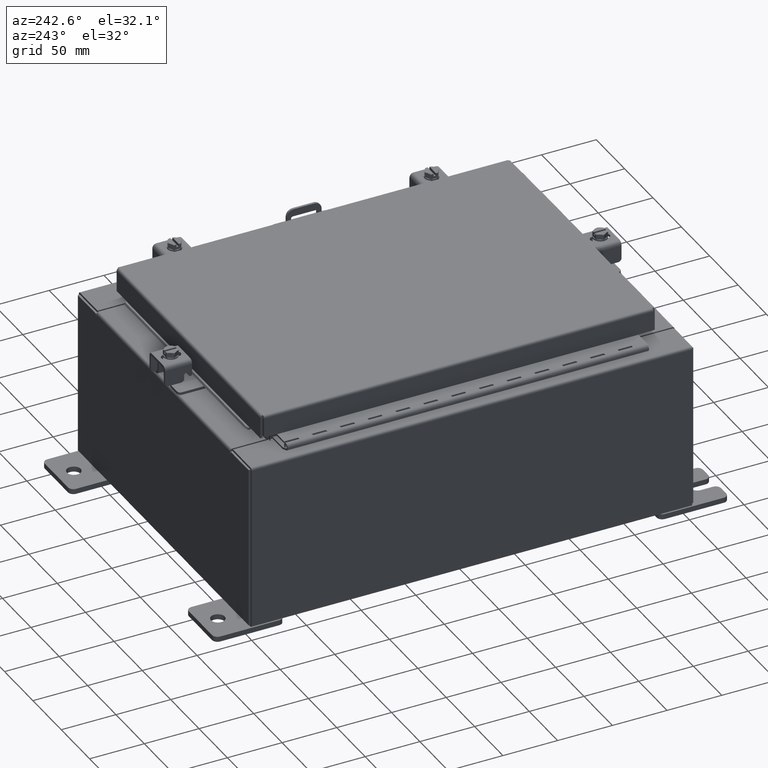
[diagram: clean part render]
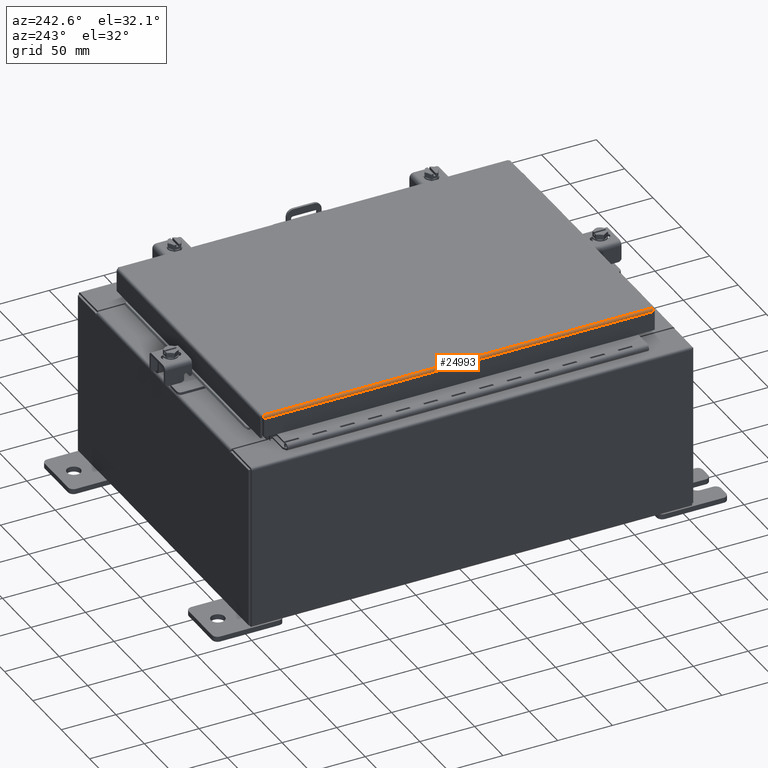
[diagram: same view with one face highlighted and labeled with its STEP entity id]
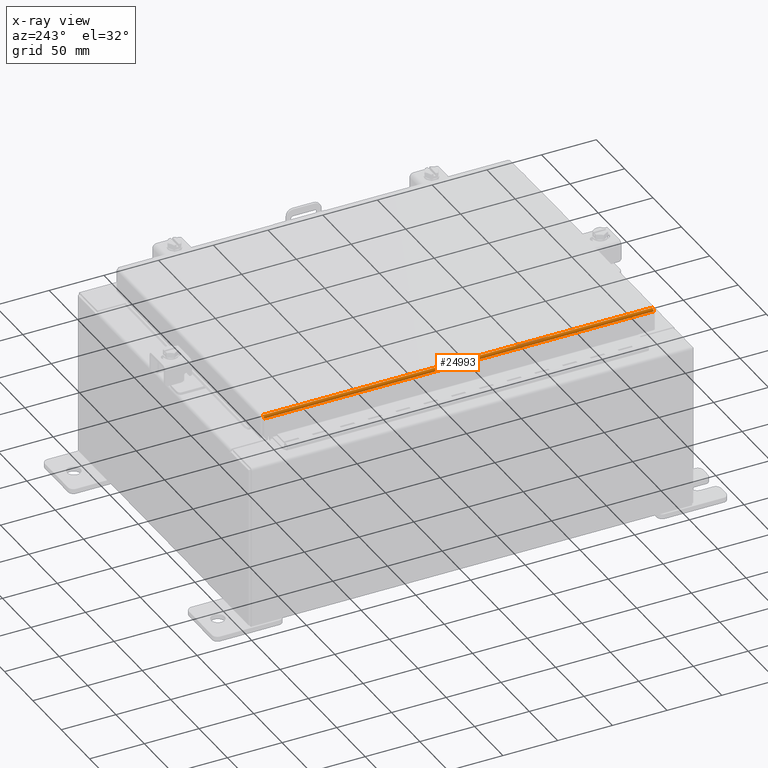
[diagram: x-ray of the same camera — body ghosted, the highlighted face saturated]
A machine part, auxiliary view. The second image highlights one B-rep face of the part: STEP entity #24993.
The next image is the same camera in x-ray: the body ghosted, the highlighted face saturated — about 0% of this face is hidden behind the body in this view.
In plain terms, the highlighted cylindrical surface (edge-blend (fillet) strip) has radius 2.2276 mm, axis along (0, 1, 0).
Its self-contained STEP definition (entity closure, byte-faithful):
#55 = CARTESIAN_POINT ( 'NONE',  ( -5.078000000000001200, -7.005157864376269700, -0.08770000000000007000 ) ) ;
#709 = CARTESIAN_POINT ( 'NONE',  ( -5.075717403743813500, -7.005348220313559100, -0.06474471054169118900 ) ) ;
#760 = CARTESIAN_POINT ( 'NONE',  ( -5.078000000000001200, 7.005157864376269700, -0.08770000000000004200 ) ) ;
#1091 = CARTESIAN_POINT ( 'NONE',  ( -4.990300000000000400, -7.006300000000000400, -2.048885995248197400E-016 ) ) ;
#1409 = EDGE_CURVE ( 'NONE', #11151, #13331, #20304, .T. ) ;
#2001 = CARTESIAN_POINT ( 'NONE',  ( -4.990300000000000400, 7.006300000000000400, -2.048885995248197400E-016 ) ) ;
#2751 = CARTESIAN_POINT ( 'NONE',  ( -5.078000000000001200, -7.005157864376269700, -0.08770000000000007000 ) ) ;
#2795 = CARTESIAN_POINT ( 'NONE',  ( -5.066931066258668200, 7.005538576250844900, -0.04353261542147222200 ) ) ;
#2955 = VERTEX_POINT ( 'NONE', #55 ) ;
#4199 = LINE ( 'NONE', #21515, #19618 ) ;
#4815 = CARTESIAN_POINT ( 'NONE',  ( -5.044195747341799300, 7.005824110156780200, -0.01756921792167976500 ) ) ;
#4857 = FACE_OUTER_BOUND ( 'NONE', #20522, .T. ) ;
#6334 = EDGE_CURVE ( 'NONE', #10430, #2955, #16400, .T. ) ;
#6824 = CARTESIAN_POINT ( 'NONE',  ( -5.013255289458311600, 7.006109644062711100, -0.002282596256188923800 ) ) ;
#8704 = CARTESIAN_POINT ( 'NONE',  ( -5.013255289458309800, -7.006109644062711100, -0.002282596256188924700 ) ) ;
#8833 = CARTESIAN_POINT ( 'NONE',  ( -4.990300000000000400, 7.006300000000000400, -2.048885995248197400E-016 ) ) ;
#9465 = DIRECTION ( 'NONE',  ( 0.0000000000000000000, -1.000000000000000000, 0.0000000000000000000 ) ) ;
#9848 = CARTESIAN_POINT ( 'NONE',  ( -4.990300000000000400, 7.006300000000000400, -0.08770000000000030500 ) ) ;
#10430 = VERTEX_POINT ( 'NONE', #1091 ) ;
#10732 = CARTESIAN_POINT ( 'NONE',  ( -5.044195747341800200, -7.005824110156779300, -0.01756921792167976500 ) ) ;
#11037 = EDGE_CURVE ( 'NONE', #11151, #2955, #18825, .T. ) ;
#11151 = VERTEX_POINT ( 'NONE', #19244 ) ;
#12759 = CARTESIAN_POINT ( 'NONE',  ( -5.066931066258668200, -7.005538576250847500, -0.04353261542147222900 ) ) ;
#12802 = CARTESIAN_POINT ( 'NONE',  ( -5.078000000000001200, 7.005253042344914900, -0.07622009684500732900 ) ) ;
#12855 = VECTOR ( 'NONE', #14950, 39.37007874015748100 ) ;
#13331 = VERTEX_POINT ( 'NONE', #2001 ) ;
#14015 = ORIENTED_EDGE ( 'NONE', *, *, #11037, .T. ) ;
#14700 = CARTESIAN_POINT ( 'NONE',  ( -4.990300000000000400, -7.006300000000000400, -2.048885995248197400E-016 ) ) ;
#14787 = CARTESIAN_POINT ( 'NONE',  ( -5.078000000000001200, -7.005253042344914900, -0.07622009684500735700 ) ) ;
#14824 = CARTESIAN_POINT ( 'NONE',  ( -5.075717403743813500, 7.005348220313559100, -0.06474471054169118900 ) ) ;
#14950 = DIRECTION ( 'NONE',  ( 3.797360338743712300E-031, -1.000000000000000000, -1.119390514946887900E-045 ) ) ;
#16400 = B_SPLINE_CURVE_WITH_KNOTS ( 'NONE', 3,
 ( #14700, #18730, #8704, #22766, #10732, #24796, #12759, #709, #14787, #2751 ),
 .UNSPECIFIED., .F., .F.,
 ( 4, 2, 2, 2, 4 ),
 ( 0.0000000000000000000, 0.2500000000000000000, 0.5000000000000000000, 0.7500000000000000000, 1.000000000000000000 ),
 .UNSPECIFIED. ) ;
#16827 = CARTESIAN_POINT ( 'NONE',  ( -5.060430782078321400, 7.005633754219491700, -0.03380425265820009200 ) ) ;
#17655 = ORIENTED_EDGE ( 'NONE', *, *, #6334, .F. ) ;
#18730 = CARTESIAN_POINT ( 'NONE',  ( -5.001779903154992500, -7.006204822031357100, -2.043883832173860400E-016 ) ) ;
#18825 = LINE ( 'NONE', #22939, #12855 ) ;
#18860 = CARTESIAN_POINT ( 'NONE',  ( -5.034467384578530200, 7.005919288125422600, -0.01106893374133176100 ) ) ;
#19244 = CARTESIAN_POINT ( 'NONE',  ( -5.078000000000001200, 7.005157864376269700, -0.08770000000000004200 ) ) ;
#19618 = VECTOR ( 'NONE', #9465, 39.37007874015748100 ) ;
#20266 = CYLINDRICAL_SURFACE ( 'NONE', #24561, 0.08770000000000026400 ) ;
#20268 = ORIENTED_EDGE ( 'NONE', *, *, #1409, .F. ) ;
#20304 = B_SPLINE_CURVE_WITH_KNOTS ( 'NONE', 3,
 ( #760, #12802, #14824, #2795, #16827, #4815, #18860, #6824, #20880, #8833 ),
 .UNSPECIFIED., .F., .F.,
 ( 4, 2, 2, 2, 4 ),
 ( 0.0000000000000000000, 0.2500000000000000000, 0.5000000000000000000, 0.7500000000000000000, 1.000000000000000000 ),
 .UNSPECIFIED. ) ;
#20522 = EDGE_LOOP ( 'NONE', ( #21222, #20268, #14015, #17655 ) ) ;
#20880 = CARTESIAN_POINT ( 'NONE',  ( -5.001779903154994300, 7.006204822031357100, -2.037547758946368100E-016 ) ) ;
#21222 = ORIENTED_EDGE ( 'NONE', *, *, #25486, .F. ) ;
#21515 = CARTESIAN_POINT ( 'NONE',  ( -4.990300000000000400, 7.006300000000000400, -2.048885995248197400E-016 ) ) ;
#21981 = DIRECTION ( 'NONE',  ( -0.0000000000000000000, 1.000000000000000000, -0.0000000000000000000 ) ) ;
#22766 = CARTESIAN_POINT ( 'NONE',  ( -5.034467384578528400, -7.005919288125420900, -0.01106893374133176100 ) ) ;
#22939 = CARTESIAN_POINT ( 'NONE',  ( -5.078000000000001200, -7.094000000000000300, -0.08770000000000004200 ) ) ;
#24561 = AXIS2_PLACEMENT_3D ( 'NONE', #9848, #21981, #25936 ) ;
#24796 = CARTESIAN_POINT ( 'NONE',  ( -5.060430782078324100, -7.005633754219490000, -0.03380425265820009900 ) ) ;
#24993 = ADVANCED_FACE ( 'NONE', ( #4857 ), #20266, .T. ) ;
#25486 = EDGE_CURVE ( 'NONE', #13331, #10430, #4199, .T. ) ;
#25936 = DIRECTION ( 'NONE',  ( -1.000000000000000000, 0.0000000000000000000, 3.114992011019675100E-015 ) ) ;